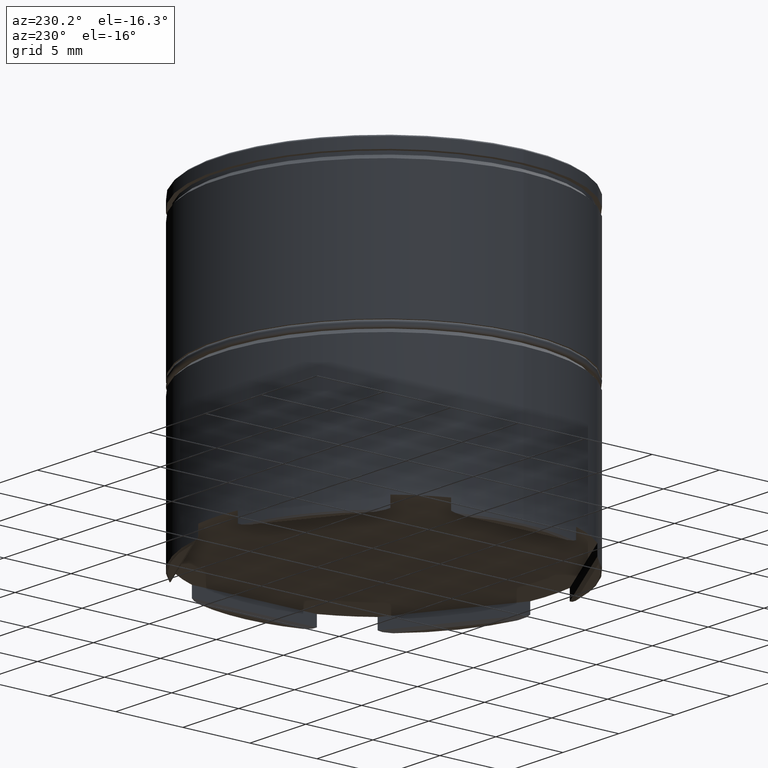
[diagram: clean part render]
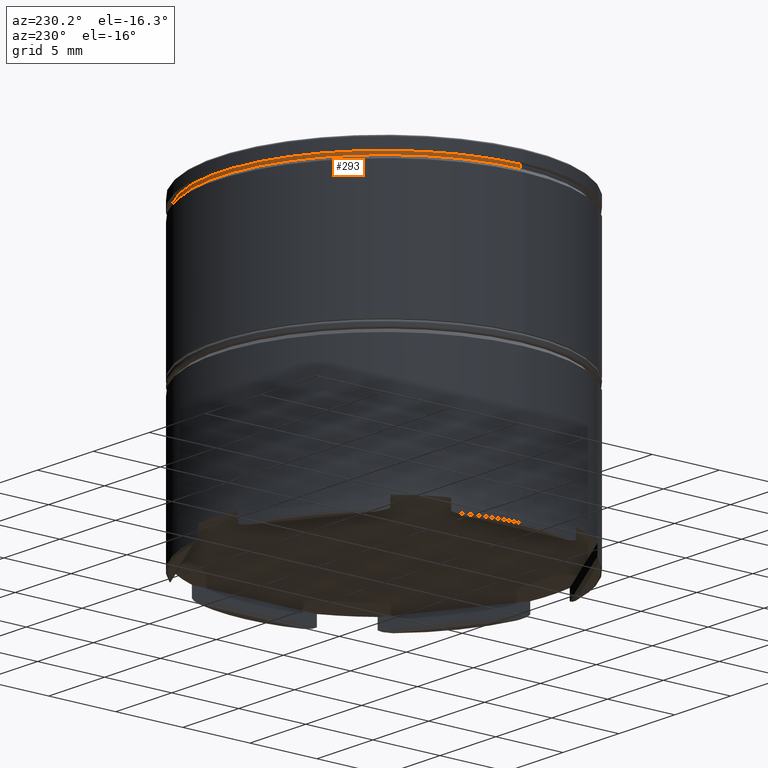
[diagram: same view with one face highlighted and labeled with its STEP entity id]
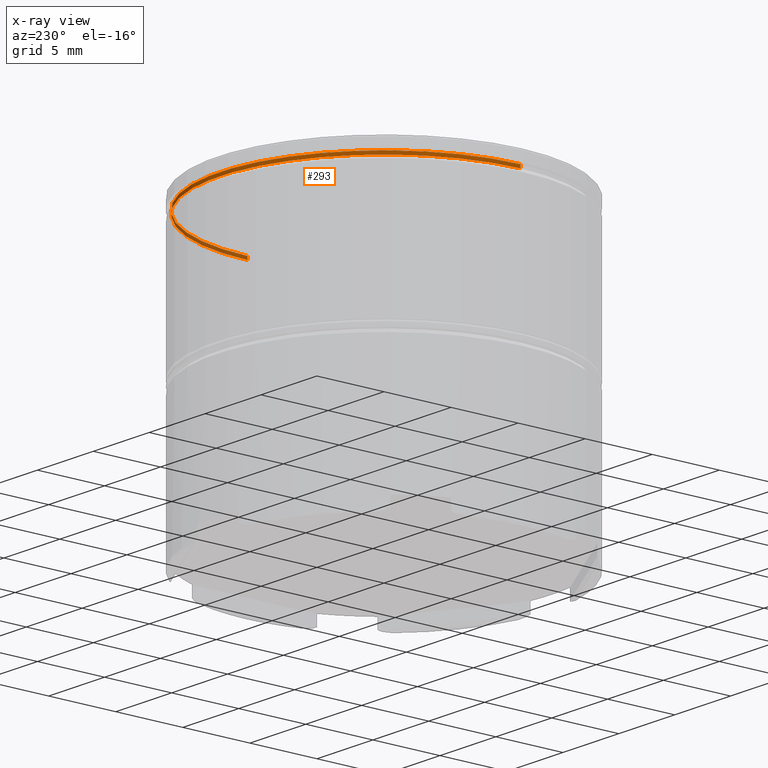
[diagram: x-ray of the same camera — body ghosted, the highlighted face saturated]
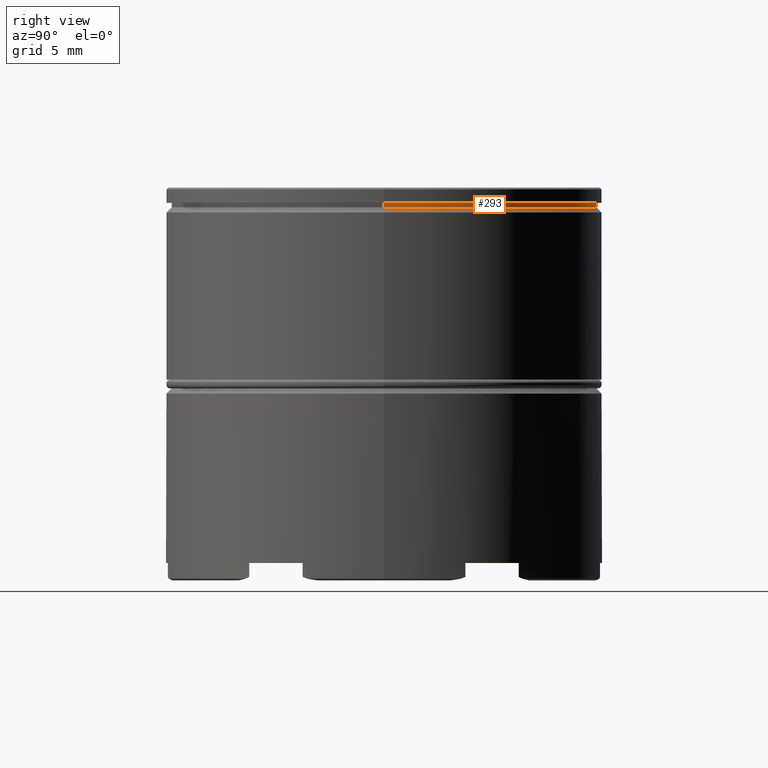
[diagram: same view with one face highlighted and labeled with its STEP entity id]
A machine part, auxiliary view. The second image highlights one B-rep face of the part: STEP entity #293.
The next image is the same camera in x-ray: the body ghosted, the highlighted face saturated — about 18% of this face is hidden behind the body in this view.
A second angle (right view) of the same face is appended — the face is thin or edge-on in the first view.
In plain terms, the highlighted cylindrical surface (partial cylindrical patch) has radius 12.2 mm, axis along (-0, -0, 1).
Its self-contained STEP definition (entity closure, byte-faithful):
#23 = EDGE_CURVE ( 'NONE', #101, #863, #283, .T. ) ;
#40 = AXIS2_PLACEMENT_3D ( 'NONE', #1276, #587, #100 ) ;
#100 = DIRECTION ( 'NONE',  ( 1.000000000000000000, 0.000000000000000000, 0.000000000000000000 ) ) ;
#101 = VERTEX_POINT ( 'NONE', #1105 ) ;
#223 = EDGE_LOOP ( 'NONE', ( #1621, #1195, #784, #1009 ) ) ;
#270 = CARTESIAN_POINT ( 'NONE',  ( 0.000000000000000000, 0.000000000000000000, -1.125000000000000222 ) ) ;
#283 = CIRCLE ( 'NONE', #569, 12.20000000000000107 ) ;
#293 = ADVANCED_FACE ( 'NONE', ( #693 ), #942, .T. ) ;
#463 = AXIS2_PLACEMENT_3D ( 'NONE', #270, #1208, #1593 ) ;
#490 = LINE ( 'NONE', #518, #1342 ) ;
#495 = LINE ( 'NONE', #977, #718 ) ;
#518 = CARTESIAN_POINT ( 'NONE',  ( 12.20000000000000107, 0.000000000000000000, 0.000000000000000000 ) ) ;
#528 = DIRECTION ( 'NONE',  ( -0.000000000000000000, -0.000000000000000000, 1.000000000000000000 ) ) ;
#569 = AXIS2_PLACEMENT_3D ( 'NONE', #1631, #528, #1022 ) ;
#587 = DIRECTION ( 'NONE',  ( -0.000000000000000000, -0.000000000000000000, 1.000000000000000000 ) ) ;
#601 = EDGE_CURVE ( 'NONE', #932, #1454, #1031, .T. ) ;
#693 = FACE_OUTER_BOUND ( 'NONE', #223, .T. ) ;
#718 = VECTOR ( 'NONE', #1486, 1000.000000000000000 ) ;
#752 = CARTESIAN_POINT ( 'NONE',  ( -12.20000000000000107, 1.494069094959771056E-15, -0.8749999999999998890 ) ) ;
#784 = ORIENTED_EDGE ( 'NONE', *, *, #23, .F. ) ;
#863 = VERTEX_POINT ( 'NONE', #752 ) ;
#891 = DIRECTION ( 'NONE',  ( -0.000000000000000000, -0.000000000000000000, 1.000000000000000000 ) ) ;
#932 = VERTEX_POINT ( 'NONE', #1541 ) ;
#942 = CYLINDRICAL_SURFACE ( 'NONE', #40, 12.20000000000000107 ) ;
#960 = CARTESIAN_POINT ( 'NONE',  ( -12.20000000000000107, 1.494069094959771056E-15, -1.125000000000000222 ) ) ;
#977 = CARTESIAN_POINT ( 'NONE',  ( -12.20000000000000107, 1.494069094959771056E-15, 0.000000000000000000 ) ) ;
#1009 = ORIENTED_EDGE ( 'NONE', *, *, #1158, .F. ) ;
#1022 = DIRECTION ( 'NONE',  ( 1.000000000000000000, 0.000000000000000000, 0.000000000000000000 ) ) ;
#1031 = CIRCLE ( 'NONE', #463, 12.20000000000000107 ) ;
#1105 = CARTESIAN_POINT ( 'NONE',  ( 12.20000000000000107, 0.000000000000000000, -0.8749999999999998890 ) ) ;
#1158 = EDGE_CURVE ( 'NONE', #932, #101, #490, .T. ) ;
#1195 = ORIENTED_EDGE ( 'NONE', *, *, #1632, .T. ) ;
#1208 = DIRECTION ( 'NONE',  ( -0.000000000000000000, -0.000000000000000000, 1.000000000000000000 ) ) ;
#1276 = CARTESIAN_POINT ( 'NONE',  ( 0.000000000000000000, 0.000000000000000000, 0.000000000000000000 ) ) ;
#1342 = VECTOR ( 'NONE', #891, 1000.000000000000000 ) ;
#1454 = VERTEX_POINT ( 'NONE', #960 ) ;
#1486 = DIRECTION ( 'NONE',  ( -0.000000000000000000, -0.000000000000000000, 1.000000000000000000 ) ) ;
#1541 = CARTESIAN_POINT ( 'NONE',  ( 12.20000000000000107, 0.000000000000000000, -1.125000000000000222 ) ) ;
#1593 = DIRECTION ( 'NONE',  ( 1.000000000000000000, 0.000000000000000000, 0.000000000000000000 ) ) ;
#1621 = ORIENTED_EDGE ( 'NONE', *, *, #601, .T. ) ;
#1631 = CARTESIAN_POINT ( 'NONE',  ( 0.000000000000000000, 0.000000000000000000, -0.8749999999999998890 ) ) ;
#1632 = EDGE_CURVE ( 'NONE', #1454, #863, #495, .T. ) ;